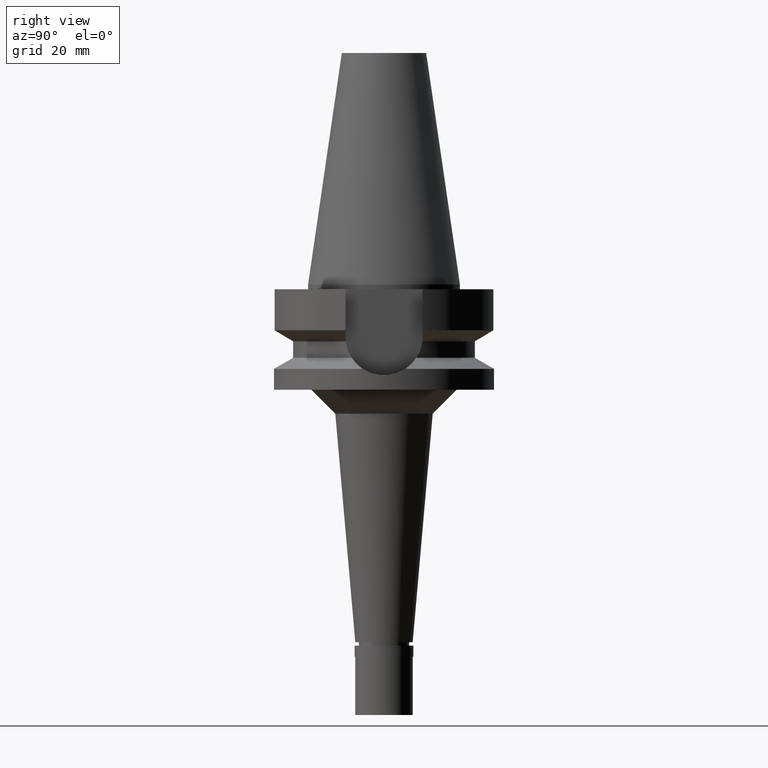
[diagram: clean part render]
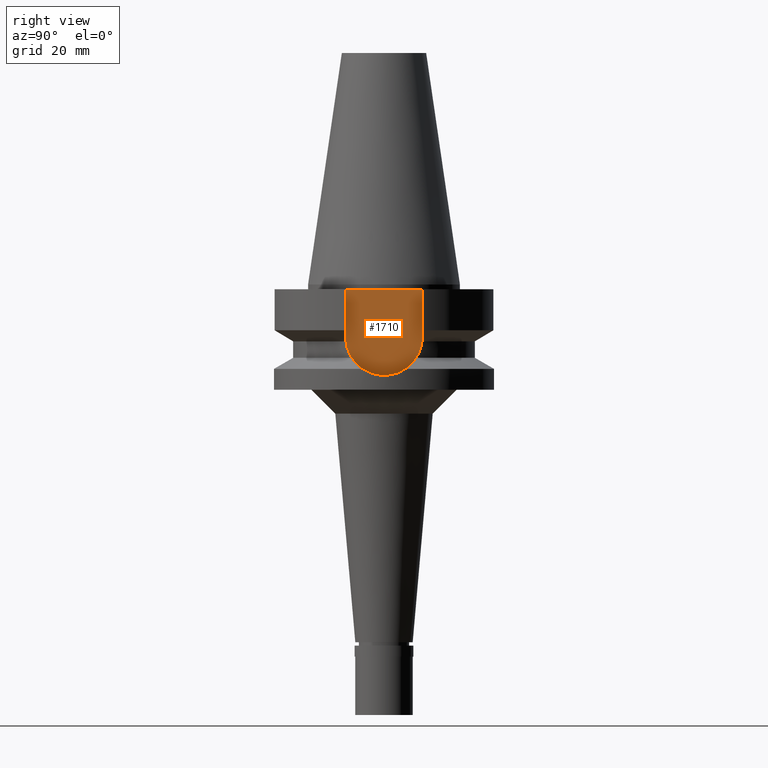
[diagram: same view with one face highlighted and labeled with its STEP entity id]
A machine part, right view. The second image highlights one B-rep face of the part: STEP entity #1710.
In plain terms, the highlighted planar face has unit normal (1, 0, 0).
Its self-contained STEP definition (entity closure, byte-faithful):
#26 = VECTOR ( 'NONE', #2256, 1000.000000000000000 ) ;
#162 = CARTESIAN_POINT ( 'NONE',  ( 16.29999999999999716, 0.0000000000000000000, -10.94999999999999929 ) ) ;
#228 = FACE_OUTER_BOUND ( 'NONE', #971, .T. ) ;
#247 = ORIENTED_EDGE ( 'NONE', *, *, #796, .T. ) ;
#269 = DIRECTION ( 'NONE',  ( 0.0000000000000000000, -1.000000000000000000, 0.0000000000000000000 ) ) ;
#290 = DIRECTION ( 'NONE',  ( 0.0000000000000000000, 0.0000000000000000000, -1.000000000000000000 ) ) ;
#528 = VERTEX_POINT ( 'NONE', #2092 ) ;
#557 = EDGE_CURVE ( 'NONE', #528, #910, #966, .T. ) ;
#696 = DIRECTION ( 'NONE',  ( 0.0000000000000000000, 1.000000000000000000, 0.0000000000000000000 ) ) ;
#796 = EDGE_CURVE ( 'NONE', #528, #2203, #2542, .T. ) ;
#841 = AXIS2_PLACEMENT_3D ( 'NONE', #162, #1300, #2902 ) ;
#910 = VERTEX_POINT ( 'NONE', #960 ) ;
#943 = ORIENTED_EDGE ( 'NONE', *, *, #1859, .F. ) ;
#960 = CARTESIAN_POINT ( 'NONE',  ( 16.29999999999999716, 8.050000000000000711, -10.94999999999999929 ) ) ;
#966 = LINE ( 'NONE', #2348, #1517 ) ;
#971 = EDGE_LOOP ( 'NONE', ( #943, #1632, #2673, #247 ) ) ;
#1040 = VECTOR ( 'NONE', #269, 1000.000000000000000 ) ;
#1144 = DIRECTION ( 'NONE',  ( 1.000000000000000000, 0.0000000000000000000, 0.0000000000000000000 ) ) ;
#1155 = PLANE ( 'NONE',  #2883 ) ;
#1272 = CIRCLE ( 'NONE', #841, 8.050000000000000711 ) ;
#1300 = DIRECTION ( 'NONE',  ( -1.000000000000000000, 0.0000000000000000000, 0.0000000000000000000 ) ) ;
#1346 = CARTESIAN_POINT ( 'NONE',  ( 16.29999999999999716, 0.0000000000000000000, 0.0000000000000000000 ) ) ;
#1517 = VECTOR ( 'NONE', #290, 1000.000000000000000 ) ;
#1545 = VERTEX_POINT ( 'NONE', #2578 ) ;
#1632 = ORIENTED_EDGE ( 'NONE', *, *, #2223, .F. ) ;
#1710 = ADVANCED_FACE ( 'NONE', ( #228 ), #1155, .T. ) ;
#1763 = CARTESIAN_POINT ( 'NONE',  ( 16.29999999999999716, -8.050000000000000711, -1.000000000000000000 ) ) ;
#1841 = CARTESIAN_POINT ( 'NONE',  ( 16.29999999999999716, 8.050000000000000711, -1.000000000000000000 ) ) ;
#1859 = EDGE_CURVE ( 'NONE', #1545, #2203, #2737, .T. ) ;
#2092 = CARTESIAN_POINT ( 'NONE',  ( 16.29999999999999716, 8.050000000000000711, -1.000000000000000000 ) ) ;
#2203 = VERTEX_POINT ( 'NONE', #1763 ) ;
#2223 = EDGE_CURVE ( 'NONE', #910, #1545, #1272, .T. ) ;
#2256 = DIRECTION ( 'NONE',  ( 0.0000000000000000000, 0.0000000000000000000, 1.000000000000000000 ) ) ;
#2348 = CARTESIAN_POINT ( 'NONE',  ( 16.29999999999999716, 8.050000000000000711, -1.000000000000000000 ) ) ;
#2542 = LINE ( 'NONE', #1841, #1040 ) ;
#2578 = CARTESIAN_POINT ( 'NONE',  ( 16.29999999999999716, -8.050000000000000711, -10.94999999999999929 ) ) ;
#2673 = ORIENTED_EDGE ( 'NONE', *, *, #557, .F. ) ;
#2737 = LINE ( 'NONE', #2752, #26 ) ;
#2752 = CARTESIAN_POINT ( 'NONE',  ( 16.29999999999999716, -8.050000000000000711, -10.94999999999999929 ) ) ;
#2883 = AXIS2_PLACEMENT_3D ( 'NONE', #1346, #1144, #696 ) ;
#2902 = DIRECTION ( 'NONE',  ( 0.0000000000000000000, 0.0000000000000000000, -1.000000000000000000 ) ) ;